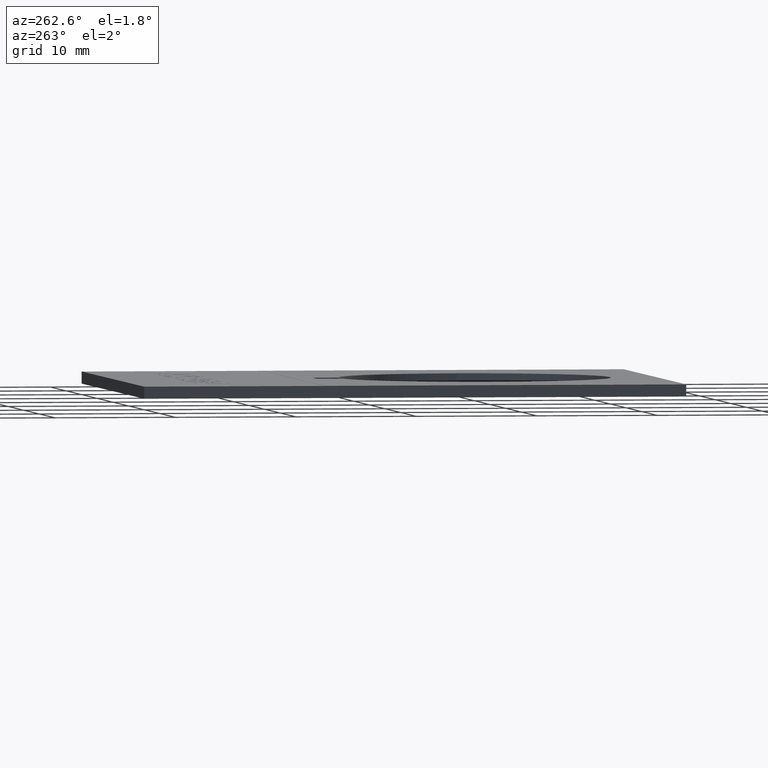
[diagram: clean part render]
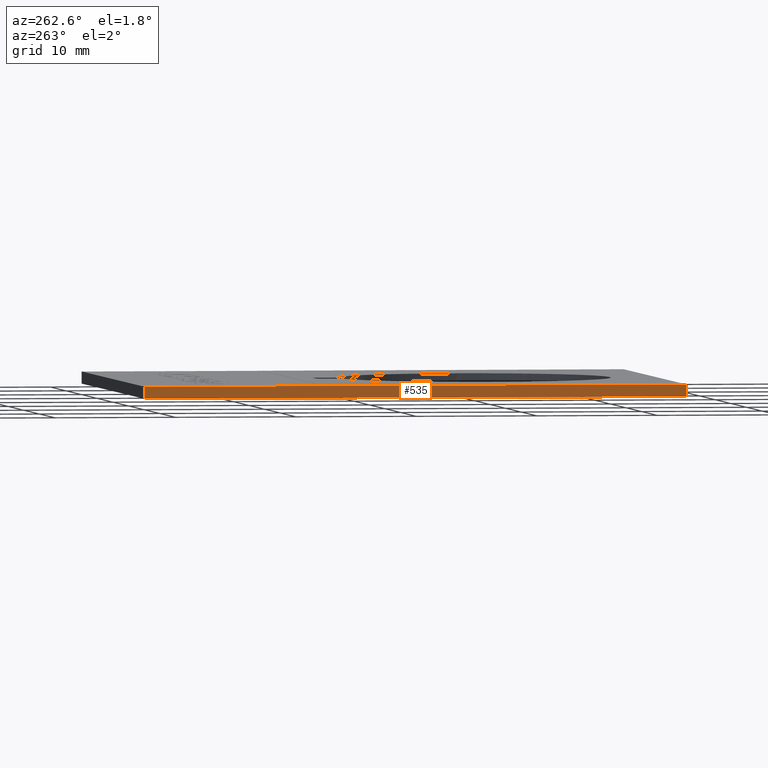
[diagram: same view with one face highlighted and labeled with its STEP entity id]
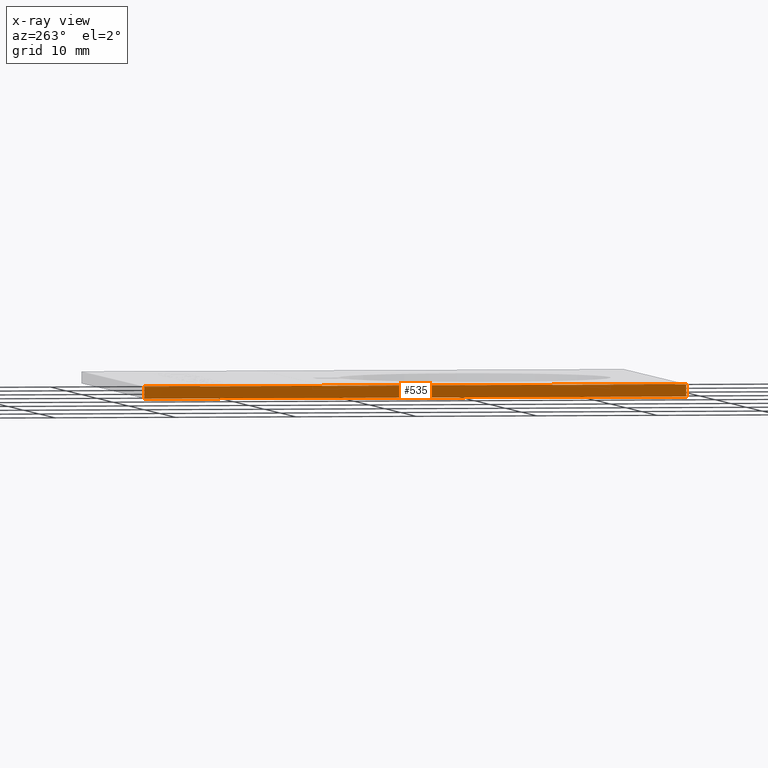
[diagram: x-ray of the same camera — body ghosted, the highlighted face saturated]
A machine part, auxiliary view. The second image highlights one B-rep face of the part: STEP entity #535.
The next image is the same camera in x-ray: the body ghosted, the highlighted face saturated — about 0% of this face is hidden behind the body in this view.
In plain terms, the highlighted planar face has unit normal (1, 0, -0).
Its self-contained STEP definition (entity closure, byte-faithful):
#63 = DIRECTION ( 'NONE',  ( 2.312964634635743000E-016, -1.000000000000000000, 0.0000000000000000000 ) ) ;
#76 = CARTESIAN_POINT ( 'NONE',  ( -19.99999999999999600, 30.00000000000000000, 0.4950000000000000000 ) ) ;
#123 = DIRECTION ( 'NONE',  ( 1.541976423090495400E-016, -1.000000000000000000, 0.0000000000000000000 ) ) ;
#252 = LINE ( 'NONE', #6010, #7374 ) ;
#265 = ORIENTED_EDGE ( 'NONE', *, *, #1930, .F. ) ;
#437 = PLANE ( 'NONE',  #6774 ) ;
#535 = ADVANCED_FACE ( 'NONE', ( #7082 ), #437, .F. ) ;
#662 = ORIENTED_EDGE ( 'NONE', *, *, #2586, .T. ) ;
#806 = VECTOR ( 'NONE', #6275, 1000.000000000000000 ) ;
#835 = CARTESIAN_POINT ( 'NONE',  ( -19.99999999999999600, 30.00000000000000000, 0.4950000000000000000 ) ) ;
#903 = LINE ( 'NONE', #8978, #1348 ) ;
#934 = VERTEX_POINT ( 'NONE', #6723 ) ;
#1021 = EDGE_CURVE ( 'NONE', #7273, #2431, #3703, .T. ) ;
#1331 = CARTESIAN_POINT ( 'NONE',  ( -19.99999999999999600, 30.00000000000000000, -0.5000000000000000000 ) ) ;
#1348 = VECTOR ( 'NONE', #5446, 1000.000000000000000 ) ;
#1620 = CARTESIAN_POINT ( 'NONE',  ( -19.99999999999999600, 30.00000000000000000, 0.5000000000000000000 ) ) ;
#1641 = LINE ( 'NONE', #1620, #3185 ) ;
#1930 = EDGE_CURVE ( 'NONE', #2018, #2145, #252, .T. ) ;
#1995 = CARTESIAN_POINT ( 'NONE',  ( -19.99999999999999300, 15.00000000000000000, 0.4950000000000000000 ) ) ;
#2018 = VERTEX_POINT ( 'NONE', #2699 ) ;
#2115 = EDGE_CURVE ( 'NONE', #934, #2145, #3860, .T. ) ;
#2145 = VERTEX_POINT ( 'NONE', #3561 ) ;
#2431 = VERTEX_POINT ( 'NONE', #8162 ) ;
#2586 = EDGE_CURVE ( 'NONE', #6493, #934, #903, .T. ) ;
#2699 = CARTESIAN_POINT ( 'NONE',  ( -19.99999999999998900, -15.00000000000000000, 0.5000000000000000000 ) ) ;
#2710 = EDGE_CURVE ( 'NONE', #6493, #7273, #8554, .T. ) ;
#2716 = VECTOR ( 'NONE', #7525, 1000.000000000000000 ) ;
#3185 = VECTOR ( 'NONE', #123, 1000.000000000000000 ) ;
#3455 = ORIENTED_EDGE ( 'NONE', *, *, #2115, .T. ) ;
#3561 = CARTESIAN_POINT ( 'NONE',  ( -19.99999999999998900, -15.00000000000000000, -0.5000000000000000000 ) ) ;
#3703 = LINE ( 'NONE', #1995, #2716 ) ;
#3860 = LINE ( 'NONE', #1331, #806 ) ;
#4108 = ORIENTED_EDGE ( 'NONE', *, *, #8149, .F. ) ;
#5446 = DIRECTION ( 'NONE',  ( -0.0000000000000000000, -0.0000000000000000000, -1.000000000000000000 ) ) ;
#5553 = EDGE_LOOP ( 'NONE', ( #4108, #8824, #8025, #662, #3455, #265 ) ) ;
#6010 = CARTESIAN_POINT ( 'NONE',  ( -19.99999999999998900, -15.00000000000000000, 0.5000000000000000000 ) ) ;
#6129 = DIRECTION ( 'NONE',  ( 1.000000000000000000, 1.541976423090495600E-016, -0.0000000000000000000 ) ) ;
#6177 = VECTOR ( 'NONE', #63, 1000.000000000000000 ) ;
#6275 = DIRECTION ( 'NONE',  ( 1.541976423090495400E-016, -1.000000000000000000, 0.0000000000000000000 ) ) ;
#6493 = VERTEX_POINT ( 'NONE', #76 ) ;
#6723 = CARTESIAN_POINT ( 'NONE',  ( -19.99999999999999600, 30.00000000000000000, -0.5000000000000000000 ) ) ;
#6774 = AXIS2_PLACEMENT_3D ( 'NONE', #8929, #6129, #7442 ) ;
#7082 = FACE_OUTER_BOUND ( 'NONE', #5553, .T. ) ;
#7273 = VERTEX_POINT ( 'NONE', #7703 ) ;
#7374 = VECTOR ( 'NONE', #8718, 1000.000000000000000 ) ;
#7442 = DIRECTION ( 'NONE',  ( -1.541976423090495600E-016, 1.000000000000000000, 0.0000000000000000000 ) ) ;
#7525 = DIRECTION ( 'NONE',  ( -0.0000000000000000000, -0.0000000000000000000, 1.000000000000000000 ) ) ;
#7703 = CARTESIAN_POINT ( 'NONE',  ( -19.99999999999999300, 15.00000000000000000, 0.4950000000000000000 ) ) ;
#8025 = ORIENTED_EDGE ( 'NONE', *, *, #2710, .F. ) ;
#8149 = EDGE_CURVE ( 'NONE', #2431, #2018, #1641, .T. ) ;
#8162 = CARTESIAN_POINT ( 'NONE',  ( -19.99999999999999300, 15.00000000000000400, 0.5000000000000000000 ) ) ;
#8554 = LINE ( 'NONE', #835, #6177 ) ;
#8718 = DIRECTION ( 'NONE',  ( -0.0000000000000000000, -0.0000000000000000000, -1.000000000000000000 ) ) ;
#8824 = ORIENTED_EDGE ( 'NONE', *, *, #1021, .F. ) ;
#8929 = CARTESIAN_POINT ( 'NONE',  ( -19.99999999999999600, 30.00000000000000000, 0.5000000000000000000 ) ) ;
#8978 = CARTESIAN_POINT ( 'NONE',  ( -19.99999999999999600, 30.00000000000000000, 0.5000000000000000000 ) ) ;